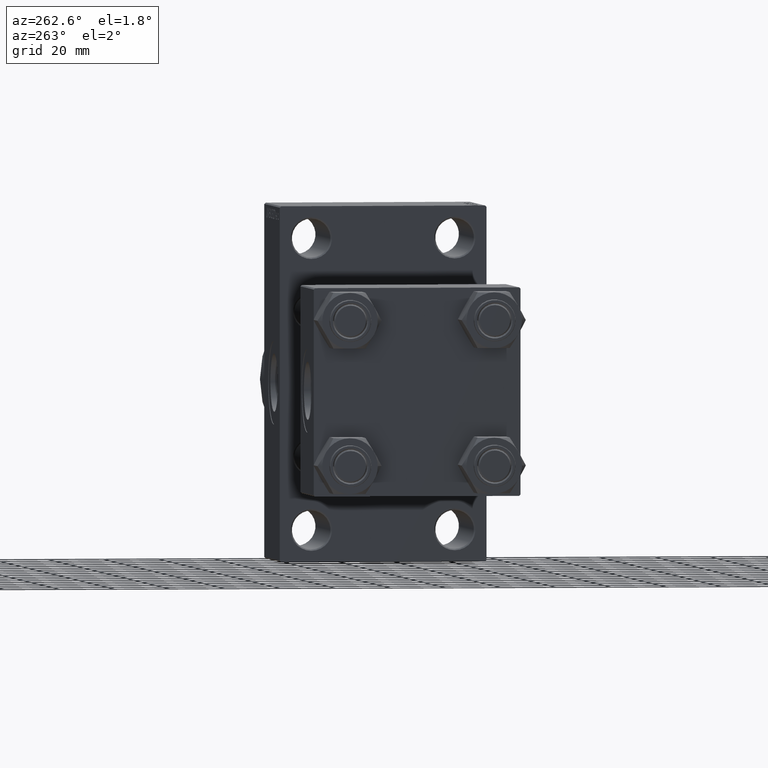
[diagram: clean part render]
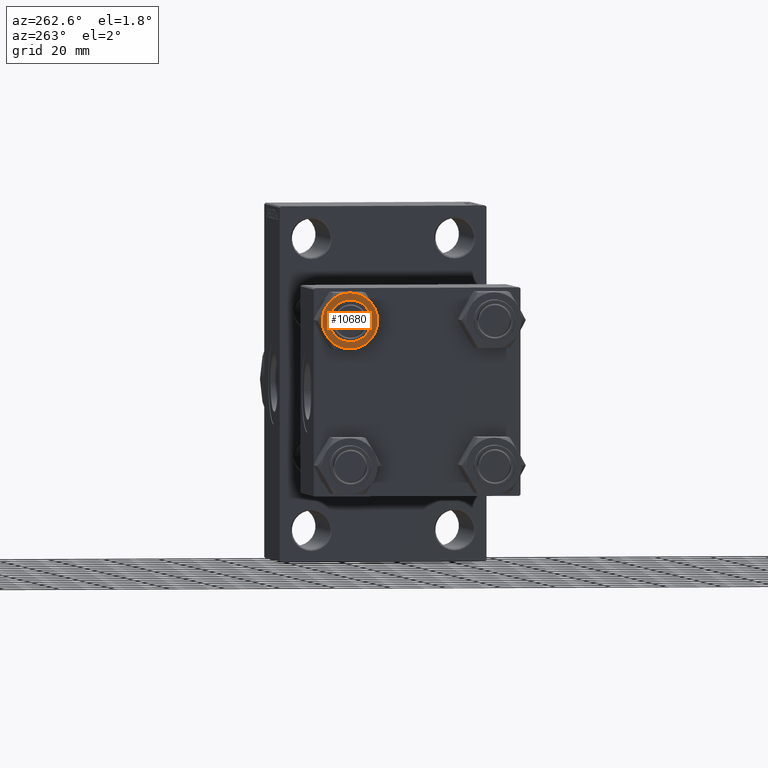
[diagram: same view with one face highlighted and labeled with its STEP entity id]
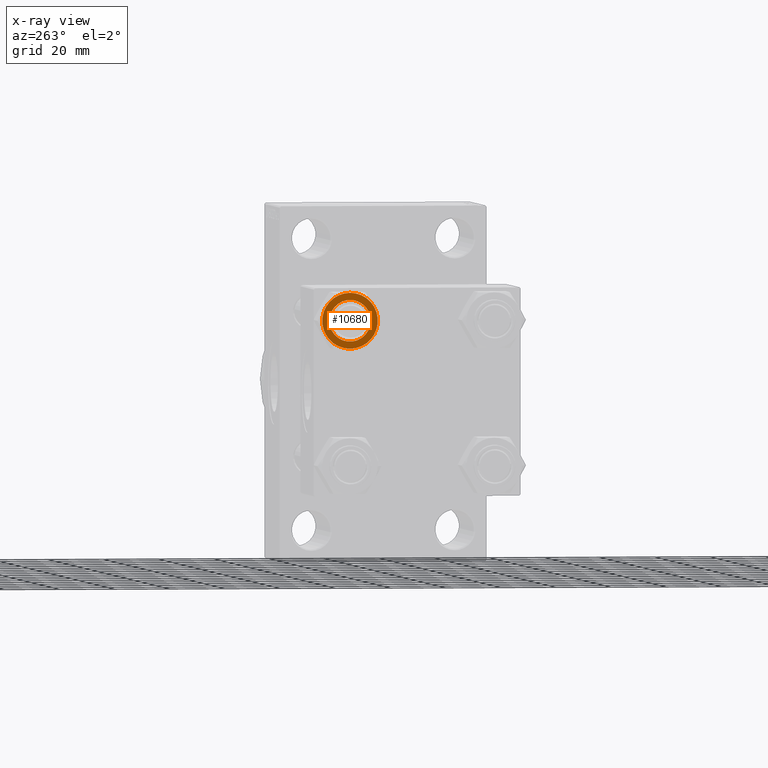
[diagram: x-ray of the same camera — body ghosted, the highlighted face saturated]
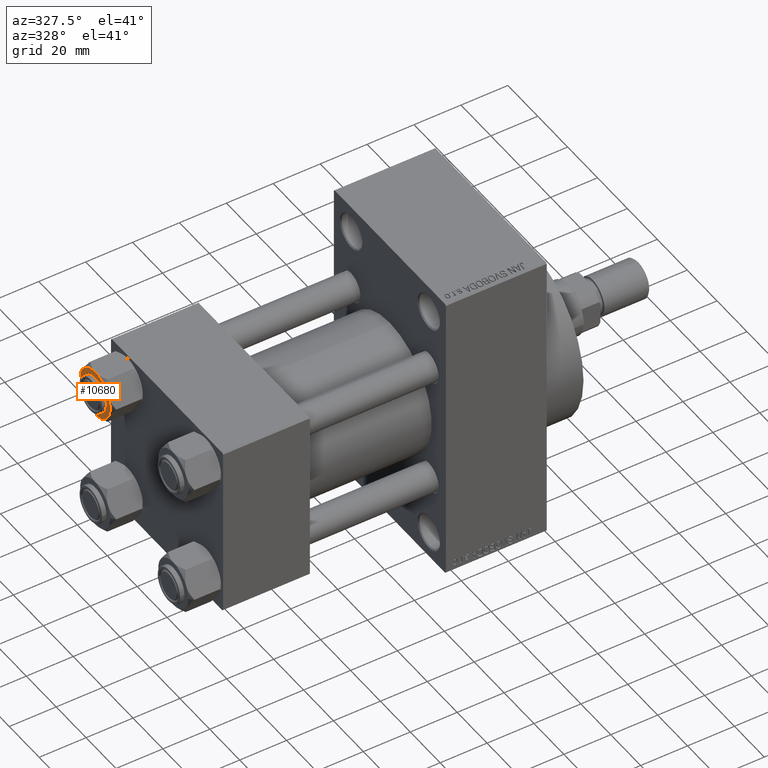
[diagram: same view with one face highlighted and labeled with its STEP entity id]
A machine part, auxiliary view. The second image highlights one B-rep face of the part: STEP entity #10680.
The next image is the same camera in x-ray: the body ghosted, the highlighted face saturated — about 0% of this face is hidden behind the body in this view.
A second angle (auxiliary view) of the same face is appended — the face is thin or edge-on in the first view.
In plain terms, the highlighted planar face has unit normal (1, 0, 0).
Its self-contained STEP definition (entity closure, byte-faithful):
#144 = DIRECTION ( 'NONE',  ( -1.000000000000000000, 0.000000000000000000, 0.000000000000000000 ) ) ;
#246 = DIRECTION ( 'NONE',  ( 0.000000000000000000, -0.000000000000000000, -1.000000000000000000 ) ) ;
#455 = DIRECTION ( 'NONE',  ( 0.000000000000000000, 0.000000000000000000, -1.000000000000000000 ) ) ;
#1206 = CARTESIAN_POINT ( 'NONE',  ( 0.000000000000000000, 0.000000000000000000, 0.000000000000000000 ) ) ;
#2569 = CIRCLE ( 'NONE', #40293, 10.06321519197518199 ) ;
#2968 = DIRECTION ( 'NONE',  ( -1.000000000000000000, 0.000000000000000000, 0.000000000000000000 ) ) ;
#3133 = CARTESIAN_POINT ( 'NONE',  ( 0.000000000000000000, 0.000000000000000000, 0.000000000000000000 ) ) ;
#3811 = FACE_OUTER_BOUND ( 'NONE', #40290, .T. ) ;
#4008 = VERTEX_POINT ( 'NONE', #24921 ) ;
#4531 = CARTESIAN_POINT ( 'NONE',  ( 0.000000000000000000, 0.000000000000000000, 0.000000000000000000 ) ) ;
#5776 = AXIS2_PLACEMENT_3D ( 'NONE', #4531, #455, #37820 ) ;
#6155 = AXIS2_PLACEMENT_3D ( 'NONE', #25549, #40010, #18093 ) ;
#6633 = AXIS2_PLACEMENT_3D ( 'NONE', #3133, #246, #17878 ) ;
#6826 = DIRECTION ( 'NONE',  ( 0.000000000000000000, -0.000000000000000000, -1.000000000000000000 ) ) ;
#7068 = ORIENTED_EDGE ( 'NONE', *, *, #10076, .F. ) ;
#7481 = DIRECTION ( 'NONE',  ( -1.000000000000000000, 0.000000000000000000, 0.000000000000000000 ) ) ;
#7820 = CIRCLE ( 'NONE', #39398, 10.06321519197518199 ) ;
#8834 = CARTESIAN_POINT ( 'NONE',  ( 10.06321519197518199, 0.000000000000000000, 0.000000000000000000 ) ) ;
#9811 = VERTEX_POINT ( 'NONE', #46948 ) ;
#10076 = EDGE_CURVE ( 'NONE', #39186, #47536, #2569, .T. ) ;
#10680 = ADVANCED_FACE ( 'NONE', ( #36630, #3811 ), #29633, .F. ) ;
#10764 = ORIENTED_EDGE ( 'NONE', *, *, #39519, .F. ) ;
#11356 = AXIS2_PLACEMENT_3D ( 'NONE', #35942, #29427, #40518 ) ;
#12743 = ORIENTED_EDGE ( 'NONE', *, *, #37668, .F. ) ;
#13254 = CARTESIAN_POINT ( 'NONE',  ( 8.715000000000003411, -5.031607595987592774, 0.000000000000000000 ) ) ;
#13813 = ORIENTED_EDGE ( 'NONE', *, *, #19371, .F. ) ;
#13901 = CIRCLE ( 'NONE', #6155, 7.500000000000000000 ) ;
#14312 = VERTEX_POINT ( 'NONE', #8834 ) ;
#14477 = DIRECTION ( 'NONE',  ( 0.000000000000000000, -0.000000000000000000, -1.000000000000000000 ) ) ;
#15658 = EDGE_CURVE ( 'NONE', #27300, #45863, #23609, .T. ) ;
#15756 = CARTESIAN_POINT ( 'NONE',  ( 8.715000000000005187, 5.031607595987590109, 0.000000000000000000 ) ) ;
#17320 = AXIS2_PLACEMENT_3D ( 'NONE', #25830, #18845, #7481 ) ;
#17540 = EDGE_CURVE ( 'NONE', #4008, #9811, #21377, .T. ) ;
#17587 = ORIENTED_EDGE ( 'NONE', *, *, #31398, .T. ) ;
#17878 = DIRECTION ( 'NONE',  ( -1.000000000000000000, 0.000000000000000000, 0.000000000000000000 ) ) ;
#18093 = DIRECTION ( 'NONE',  ( 1.000000000000000000, 0.000000000000000000, 0.000000000000000000 ) ) ;
#18656 = AXIS2_PLACEMENT_3D ( 'NONE', #1206, #33277, #29672 ) ;
#18845 = DIRECTION ( 'NONE',  ( 0.000000000000000000, -0.000000000000000000, -1.000000000000000000 ) ) ;
#18988 = AXIS2_PLACEMENT_3D ( 'NONE', #39305, #14477, #28688 ) ;
#19371 = EDGE_CURVE ( 'NONE', #14312, #34692, #39924, .T. ) ;
#21377 = CIRCLE ( 'NONE', #11356, 7.500000000000000000 ) ;
#22099 = DIRECTION ( 'NONE',  ( 0.000000000000000000, -0.000000000000000000, -1.000000000000000000 ) ) ;
#23609 = CIRCLE ( 'NONE', #6633, 10.06321519197518199 ) ;
#24305 = ORIENTED_EDGE ( 'NONE', *, *, #39571, .F. ) ;
#24921 = CARTESIAN_POINT ( 'NONE',  ( -7.500000000000000000, 0.000000000000000000, 0.000000000000000000 ) ) ;
#25549 = CARTESIAN_POINT ( 'NONE',  ( 0.000000000000000000, 0.000000000000000000, 0.000000000000000000 ) ) ;
#25830 = CARTESIAN_POINT ( 'NONE',  ( 0.000000000000000000, 0.000000000000000000, 0.000000000000000000 ) ) ;
#27300 = VERTEX_POINT ( 'NONE', #35748 ) ;
#28649 = CARTESIAN_POINT ( 'NONE',  ( 0.000000000000000000, 0.000000000000000000, 0.000000000000000000 ) ) ;
#28688 = DIRECTION ( 'NONE',  ( -1.000000000000000000, 0.000000000000000000, 0.000000000000000000 ) ) ;
#29427 = DIRECTION ( 'NONE',  ( 0.000000000000000000, 0.000000000000000000, 1.000000000000000000 ) ) ;
#29633 = PLANE ( 'NONE',  #5776 ) ;
#29672 = DIRECTION ( 'NONE',  ( -1.000000000000000000, 0.000000000000000000, 0.000000000000000000 ) ) ;
#30092 = ORIENTED_EDGE ( 'NONE', *, *, #32225, .F. ) ;
#31398 = EDGE_CURVE ( 'NONE', #47470, #47536, #7820, .T. ) ;
#32225 = EDGE_CURVE ( 'NONE', #47470, #14312, #44830, .T. ) ;
#33277 = DIRECTION ( 'NONE',  ( 0.000000000000000000, -0.000000000000000000, -1.000000000000000000 ) ) ;
#34692 = VERTEX_POINT ( 'NONE', #13254 ) ;
#34742 = CARTESIAN_POINT ( 'NONE',  ( 0.000000000000000000, 10.06321519197518022, 0.000000000000000000 ) ) ;
#35748 = CARTESIAN_POINT ( 'NONE',  ( 1.502314598737159623E-15, -10.06321519197518199, 0.000000000000000000 ) ) ;
#35942 = CARTESIAN_POINT ( 'NONE',  ( 0.000000000000000000, 0.000000000000000000, 0.000000000000000000 ) ) ;
#36243 = CARTESIAN_POINT ( 'NONE',  ( 0.000000000000000000, 0.000000000000000000, 0.000000000000000000 ) ) ;
#36630 = FACE_BOUND ( 'NONE', #39679, .T. ) ;
#37668 = EDGE_CURVE ( 'NONE', #45863, #39186, #42711, .T. ) ;
#37820 = DIRECTION ( 'NONE',  ( -1.000000000000000000, 0.000000000000000000, -0.000000000000000000 ) ) ;
#39186 = VERTEX_POINT ( 'NONE', #41605 ) ;
#39305 = CARTESIAN_POINT ( 'NONE',  ( 0.000000000000000000, 0.000000000000000000, 0.000000000000000000 ) ) ;
#39398 = AXIS2_PLACEMENT_3D ( 'NONE', #28649, #45845, #41991 ) ;
#39519 = EDGE_CURVE ( 'NONE', #34692, #27300, #42052, .T. ) ;
#39571 = EDGE_CURVE ( 'NONE', #9811, #4008, #13901, .T. ) ;
#39679 = EDGE_LOOP ( 'NONE', ( #42246, #24305 ) ) ;
#39924 = CIRCLE ( 'NONE', #45278, 10.06321519197518199 ) ;
#40010 = DIRECTION ( 'NONE',  ( 0.000000000000000000, 0.000000000000000000, 1.000000000000000000 ) ) ;
#40290 = EDGE_LOOP ( 'NONE', ( #7068, #12743, #47606, #10764, #13813, #30092, #17587 ) ) ;
#40293 = AXIS2_PLACEMENT_3D ( 'NONE', #41373, #22099, #144 ) ;
#40518 = DIRECTION ( 'NONE',  ( 1.000000000000000000, 0.000000000000000000, 0.000000000000000000 ) ) ;
#41373 = CARTESIAN_POINT ( 'NONE',  ( 0.000000000000000000, 0.000000000000000000, 0.000000000000000000 ) ) ;
#41605 = CARTESIAN_POINT ( 'NONE',  ( -8.715000000000003411, 5.031607595987592774, 0.000000000000000000 ) ) ;
#41991 = DIRECTION ( 'NONE',  ( 1.000000000000000000, 0.000000000000000000, 0.000000000000000000 ) ) ;
#42052 = CIRCLE ( 'NONE', #18988, 10.06321519197518199 ) ;
#42246 = ORIENTED_EDGE ( 'NONE', *, *, #17540, .F. ) ;
#42711 = CIRCLE ( 'NONE', #17320, 10.06321519197518199 ) ;
#44291 = CARTESIAN_POINT ( 'NONE',  ( -8.715000000000006963, -5.031607595987586556, 0.000000000000000000 ) ) ;
#44830 = CIRCLE ( 'NONE', #18656, 10.06321519197518199 ) ;
#45278 = AXIS2_PLACEMENT_3D ( 'NONE', #36243, #6826, #2968 ) ;
#45845 = DIRECTION ( 'NONE',  ( 0.000000000000000000, 0.000000000000000000, 1.000000000000000000 ) ) ;
#45863 = VERTEX_POINT ( 'NONE', #44291 ) ;
#46948 = CARTESIAN_POINT ( 'NONE',  ( 7.500000000000000000, 9.184850993605147944E-16, 0.000000000000000000 ) ) ;
#47470 = VERTEX_POINT ( 'NONE', #15756 ) ;
#47536 = VERTEX_POINT ( 'NONE', #34742 ) ;
#47606 = ORIENTED_EDGE ( 'NONE', *, *, #15658, .F. ) ;